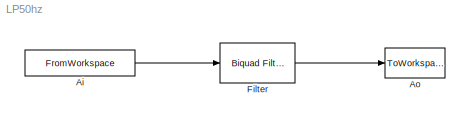
MODEL LP50hz
KIND model
BLOCK [FromWorkspace] Ai
  SID = 6
  SampleTime = dt
  VariableName = input
BLOCK [ToWorkspace] Ao
  MaxDataPoints = inf
  Ports = [1]
  SID = 13
  SampleTime = -1
  SaveFormat = Array
  VariableName = output
BLOCK [Reference] Filter  REF=dsparch4/Biquad Filter
  BiQuadCoeffs = [1 2 1 1 -1.88854922390186 0.987675667297112;1 2 1 1 -1.86557542914774 0.963496020698383;1 2 1 1 -1.84320641511002 0.939952898633315;1 2 1 1 -1.82145291862966 0.917057601499729;1 2 1 1 -1.80032358007311 0.894819223180861;1 2 1 1 -1.77982513836477 0.873244856314742;1 2 1 1 -1.75996261670831 0.852339787763694;1 2 1 1 -1.74073949854059 0.832107683803692;1 2 1 1 -1.72215789345869 0.812550764760672;1 2...<+1339ch>
  CoeffSource = Specify via dialog
  DialogController = dspdialog.BiquadFilter
  DialogControllerArgs = DataTag0
  FilterSource = Specify via dialog
  IC = 0
  ICden = 0
  ICnum = 0
  IIRFiltStruct = Direct form II
  LockScale = off
  Ports = [1, 1]
  SID = 31
  ScaleValueMode = Specify via input port (g)
  ScaleValues = [0.0247816108488118;0.0244801478876607;0.0241866208808246;0.023901170717517;0.0236239107769372;0.0233549294874934;0.023094292763845;0.0228420463157757;0.0225982178254945;0.0223628189921426;0.0221358474440954;0.0219172885211294;0.0217071169297127;0.0215052982756025;0.0213117904786376;0.0211265450751207;0.0209495084135257;0.0207806227494704;0.0206198272459787;0.0204670588850455;0.0203222532964327;0....<+357ch>
  SourceBlock = dsparch4/Biquad Filter
  SourceType = Biquad Filter
  Tag = BlockMethodSubSystem
  a0Flag = Warning
  accumFracLength = 30
  accumMode = Same as product output
  accumWordLength = 32
  allowOverrides = on
  denAccumFracLength = 30
  denProdOutputFracLength = 30
  dfiltObjectName = dfilt.df2tsos([1 0.3 0.4],[1 0.1 0.2])
  firstCoeffFracLength = 15
  firstCoeffMode = Same word length as input
  firstCoeffWordLength = 16
  memoryFracLength = 15
  memoryMode = Same as accumulator
  memoryWordLength = 16
  multiplicandFracLength = 30
  multiplicandMode = Same as output
  multiplicandWordLength = 32
  optimizeScaleValues = on
  outputFracLength = 15
  outputMode = Same as accumulator
  outputWordLength = 16
  overflowMode = off
  prodOutputFracLength = 30
  prodOutputMode = Same as input
  prodOutputWordLength = 32
  roundingMode = Floor
  scaleValueFracLength = 14
  secondCoeffFracLength = 15
  secondCoeffMode = Same as numerator
  secondCoeffWordLength = 16
  secondMemoryFracLength = 15
  stageInputFracLength = 15
  stageInputMode = Same as input
  stageInputWordLength = 16
  stageOutputFracLength = 15
  stageOutputMode = Same as section input
  stageOutputWordLength = 16
LINE Ai:1 -> Filter:1
LINE Filter:1 -> Ao:1
